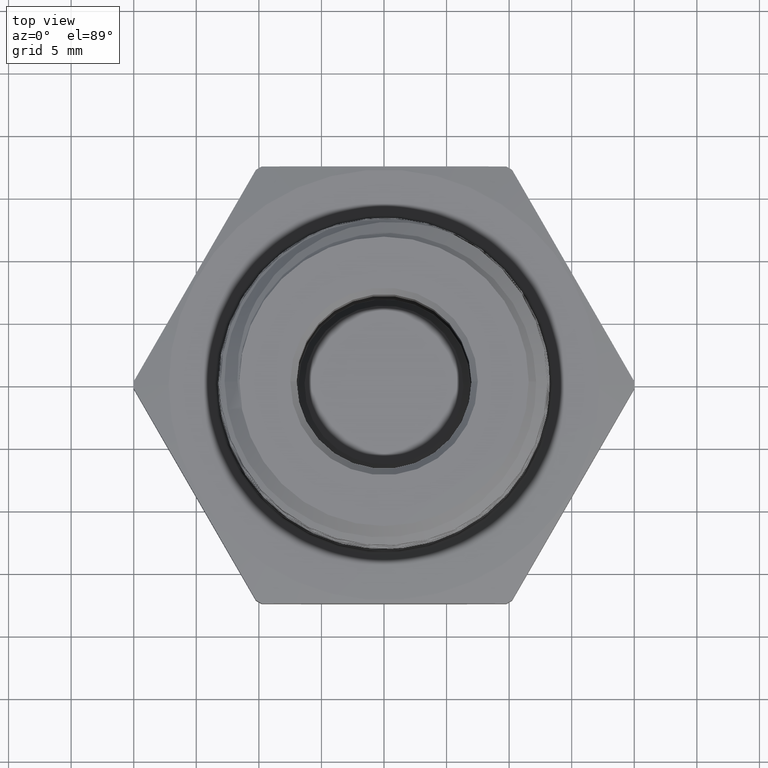
[diagram: clean part render]
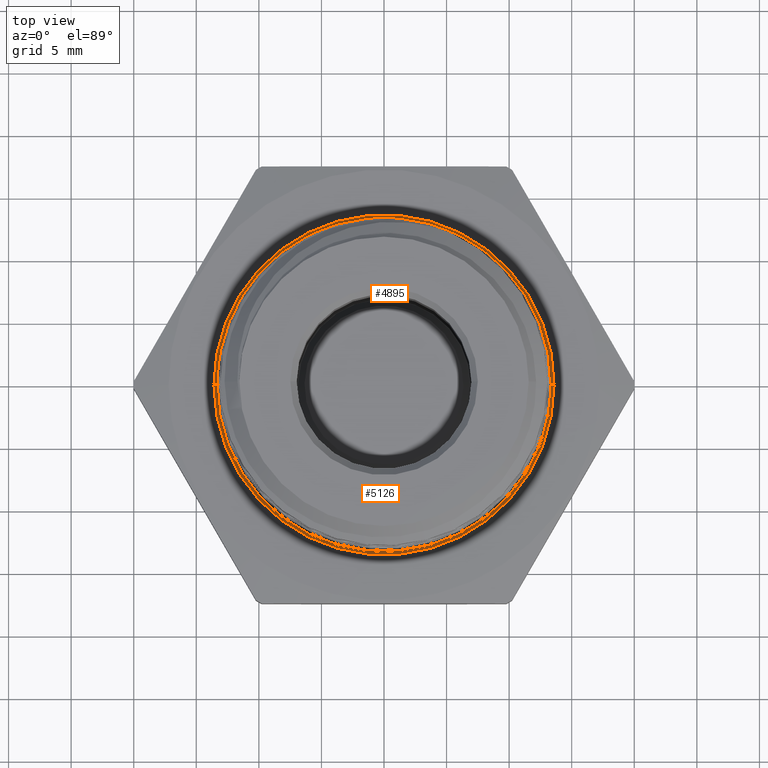
[diagram: same view with one multi-face feature highlighted, each face labeled with its STEP entity id]
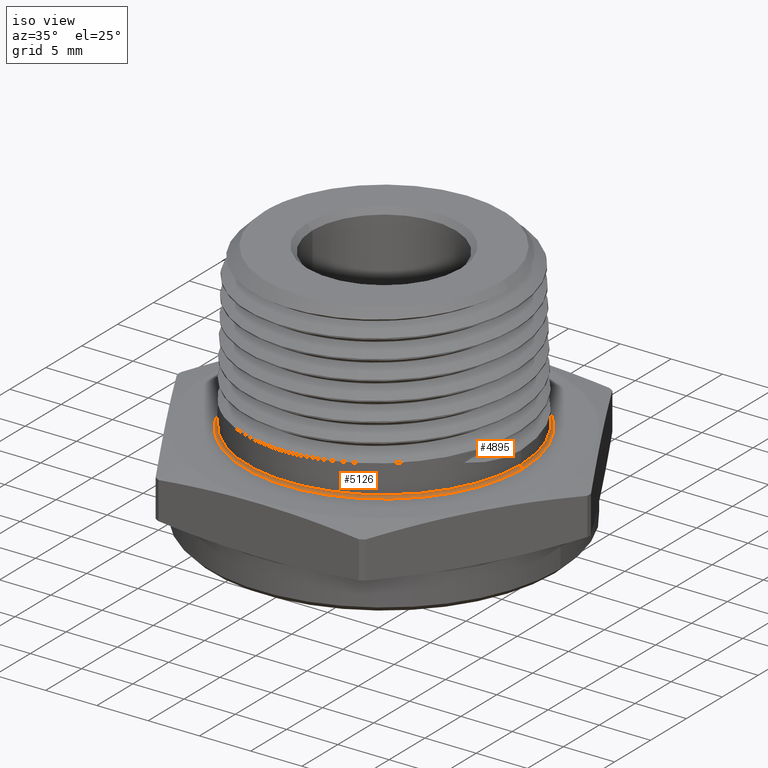
[diagram: same view with one multi-face feature highlighted, each face labeled with its STEP entity id]
A machine part, top view. The highlighted faces form ONE feature: a constant-radius fillet chain: 2 tangent blend faces with common blend radius 0.254 mm. The faces share edges in the B-rep.
A second angle (iso view) of the same feature is appended — it is thin or edge-on in the first view.
Their STEP definitions:
[1] entity #5126 (Torus):
#698 = CIRCLE ( 'NONE', #5213, 0.01000000000000003000 ) ;
#702 = CIRCLE ( 'NONE', #5214, 0.5350000000000000300 ) ;
#706 = CIRCLE ( 'NONE', #5215, 0.009999999999999995000 ) ;
#1157 = CARTESIAN_POINT ( 'NONE',  ( -0.5250000000000000200, 0.0000000000000000000, 0.2000000000000000400 ) ) ;
#1160 = CARTESIAN_POINT ( 'NONE',  ( 0.5250000000000000200, 6.429395695523603700E-017, 0.2000000000000000400 ) ) ;
#1162 = CARTESIAN_POINT ( 'NONE',  ( 0.5350000000000000300, 0.0000000000000000000, 0.1900000000000000300 ) ) ;
#1163 = CARTESIAN_POINT ( 'NONE',  ( -0.5350000000000000300, 6.551860375438339900E-017, 0.1900000000000000300 ) ) ;
#2877 = DIRECTION ( 'NONE',  ( -0.0000000000000000000, 0.0000000000000000000, 1.000000000000000000 ) ) ;
#2878 = CARTESIAN_POINT ( 'NONE',  ( 0.0000000000000000000, 0.0000000000000000000, 0.2000000000000000400 ) ) ;
#2880 = DIRECTION ( 'NONE',  ( 1.000000000000000000, 0.0000000000000000000, 0.0000000000000000000 ) ) ;
#3020 = AXIS2_PLACEMENT_3D ( 'NONE', #3304, #3305, #3306 ) ;
#3304 = CARTESIAN_POINT ( 'NONE',  ( 0.0000000000000000000, 0.0000000000000000000, 0.2000000000000000400 ) ) ;
#3305 = DIRECTION ( 'NONE',  ( -0.0000000000000000000, 0.0000000000000000000, 1.000000000000000000 ) ) ;
#3306 = DIRECTION ( 'NONE',  ( 1.000000000000000000, 0.0000000000000000000, 0.0000000000000000000 ) ) ;
#4272 = EDGE_CURVE ( 'NONE', #4793, #4799, #698, .T. ) ;
#4273 = EDGE_CURVE ( 'NONE', #4798, #4799, #702, .T. ) ;
#4274 = EDGE_CURVE ( 'NONE', #4796, #4798, #706, .T. ) ;
#4507 = CARTESIAN_POINT ( 'NONE',  ( -0.5350000000000000300, 6.551860375438339900E-017, 0.2000000000000000400 ) ) ;
#4508 = DIRECTION ( 'NONE',  ( 1.224646799147353200E-016, 1.000000000000000000, 0.0000000000000000000 ) ) ;
#4509 = DIRECTION ( 'NONE',  ( -1.000000000000000000, 1.224646799147346800E-016, 0.0000000000000000000 ) ) ;
#4510 = CARTESIAN_POINT ( 'NONE',  ( 0.0000000000000000000, 0.0000000000000000000, 0.1899999999999999700 ) ) ;
#4511 = DIRECTION ( 'NONE',  ( 0.0000000000000000000, -0.0000000000000000000, -1.000000000000000000 ) ) ;
#4512 = DIRECTION ( 'NONE',  ( 1.000000000000000000, 0.0000000000000000000, 0.0000000000000000000 ) ) ;
#4513 = CARTESIAN_POINT ( 'NONE',  ( 0.5350000000000000300, 0.0000000000000000000, 0.2000000000000000400 ) ) ;
#4514 = DIRECTION ( 'NONE',  ( 0.0000000000000000000, -1.000000000000000000, 0.0000000000000000000 ) ) ;
#4515 = DIRECTION ( 'NONE',  ( 0.0000000000000000000, 0.0000000000000000000, -1.000000000000000000 ) ) ;
#4636 = AXIS2_PLACEMENT_3D ( 'NONE', #2878, #2877, #2880 ) ;
#4645 = TOROIDAL_SURFACE ( 'NONE', #4636, 0.5350000000000000300, 0.01000000000000000000 ) ;
#4651 = FACE_OUTER_BOUND ( 'NONE', #4997, .T. ) ;
#4744 = CIRCLE ( 'NONE', #3020, 0.5250000000000000200 ) ;
#4793 = VERTEX_POINT ( 'NONE', #1157 ) ;
#4796 = VERTEX_POINT ( 'NONE', #1160 ) ;
#4798 = VERTEX_POINT ( 'NONE', #1162 ) ;
#4799 = VERTEX_POINT ( 'NONE', #1163 ) ;
#4997 = EDGE_LOOP ( 'NONE', ( #5041, #5042, #5043, #5044 ) ) ;
#5041 = ORIENTED_EDGE ( 'NONE', *, *, #5186, .F. ) ;
#5042 = ORIENTED_EDGE ( 'NONE', *, *, #4272, .T. ) ;
#5043 = ORIENTED_EDGE ( 'NONE', *, *, #4273, .F. ) ;
#5044 = ORIENTED_EDGE ( 'NONE', *, *, #4274, .F. ) ;
#5126 = ADVANCED_FACE ( 'NONE', ( #4651 ), #4645, .F. ) ;
#5186 = EDGE_CURVE ( 'NONE', #4793, #4796, #4744, .T. ) ;
#5213 = AXIS2_PLACEMENT_3D ( 'NONE', #4507, #4508, #4509 ) ;
#5214 = AXIS2_PLACEMENT_3D ( 'NONE', #4510, #4511, #4512 ) ;
#5215 = AXIS2_PLACEMENT_3D ( 'NONE', #4513, #4514, #4515 ) ;
[2] entity #4895 (Torus):
#212 = CARTESIAN_POINT ( 'NONE',  ( 0.0000000000000000000, 0.0000000000000000000, 0.1899999999999999700 ) ) ;
#213 = DIRECTION ( 'NONE',  ( 0.0000000000000000000, -0.0000000000000000000, -1.000000000000000000 ) ) ;
#214 = DIRECTION ( 'NONE',  ( 1.000000000000000000, 0.0000000000000000000, 0.0000000000000000000 ) ) ;
#698 = CIRCLE ( 'NONE', #5213, 0.01000000000000003000 ) ;
#706 = CIRCLE ( 'NONE', #5215, 0.009999999999999995000 ) ;
#737 = CIRCLE ( 'NONE', #4591, 0.5350000000000000300 ) ;
#800 = TOROIDAL_SURFACE ( 'NONE', #4611, 0.5350000000000000300, 0.01000000000000000000 ) ;
#801 = FACE_OUTER_BOUND ( 'NONE', #5065, .T. ) ;
#957 = CIRCLE ( 'NONE', #5201, 0.5250000000000000200 ) ;
#1157 = CARTESIAN_POINT ( 'NONE',  ( -0.5250000000000000200, 0.0000000000000000000, 0.2000000000000000400 ) ) ;
#1160 = CARTESIAN_POINT ( 'NONE',  ( 0.5250000000000000200, 6.429395695523603700E-017, 0.2000000000000000400 ) ) ;
#1162 = CARTESIAN_POINT ( 'NONE',  ( 0.5350000000000000300, 0.0000000000000000000, 0.1900000000000000300 ) ) ;
#1163 = CARTESIAN_POINT ( 'NONE',  ( -0.5350000000000000300, 6.551860375438339900E-017, 0.1900000000000000300 ) ) ;
#1247 = DIRECTION ( 'NONE',  ( -0.0000000000000000000, 0.0000000000000000000, 1.000000000000000000 ) ) ;
#1248 = CARTESIAN_POINT ( 'NONE',  ( 0.0000000000000000000, 0.0000000000000000000, 0.2000000000000000400 ) ) ;
#1250 = DIRECTION ( 'NONE',  ( 1.000000000000000000, 0.0000000000000000000, 0.0000000000000000000 ) ) ;
#3407 = EDGE_CURVE ( 'NONE', #4796, #4793, #957, .T. ) ;
#3485 = CARTESIAN_POINT ( 'NONE',  ( 0.0000000000000000000, 0.0000000000000000000, 0.2000000000000000400 ) ) ;
#3486 = DIRECTION ( 'NONE',  ( -0.0000000000000000000, 0.0000000000000000000, 1.000000000000000000 ) ) ;
#3487 = DIRECTION ( 'NONE',  ( 1.000000000000000000, 0.0000000000000000000, 0.0000000000000000000 ) ) ;
#4272 = EDGE_CURVE ( 'NONE', #4793, #4799, #698, .T. ) ;
#4274 = EDGE_CURVE ( 'NONE', #4796, #4798, #706, .T. ) ;
#4311 = EDGE_CURVE ( 'NONE', #4799, #4798, #737, .T. ) ;
#4507 = CARTESIAN_POINT ( 'NONE',  ( -0.5350000000000000300, 6.551860375438339900E-017, 0.2000000000000000400 ) ) ;
#4508 = DIRECTION ( 'NONE',  ( 1.224646799147353200E-016, 1.000000000000000000, 0.0000000000000000000 ) ) ;
#4509 = DIRECTION ( 'NONE',  ( -1.000000000000000000, 1.224646799147346800E-016, 0.0000000000000000000 ) ) ;
#4513 = CARTESIAN_POINT ( 'NONE',  ( 0.5350000000000000300, 0.0000000000000000000, 0.2000000000000000400 ) ) ;
#4514 = DIRECTION ( 'NONE',  ( 0.0000000000000000000, -1.000000000000000000, 0.0000000000000000000 ) ) ;
#4515 = DIRECTION ( 'NONE',  ( 0.0000000000000000000, 0.0000000000000000000, -1.000000000000000000 ) ) ;
#4591 = AXIS2_PLACEMENT_3D ( 'NONE', #212, #213, #214 ) ;
#4611 = AXIS2_PLACEMENT_3D ( 'NONE', #1248, #1247, #1250 ) ;
#4793 = VERTEX_POINT ( 'NONE', #1157 ) ;
#4796 = VERTEX_POINT ( 'NONE', #1160 ) ;
#4798 = VERTEX_POINT ( 'NONE', #1162 ) ;
#4799 = VERTEX_POINT ( 'NONE', #1163 ) ;
#4895 = ADVANCED_FACE ( 'NONE', ( #801 ), #800, .F. ) ;
#5065 = EDGE_LOOP ( 'NONE', ( #5094, #5095, #5096, #5097 ) ) ;
#5094 = ORIENTED_EDGE ( 'NONE', *, *, #4272, .F. ) ;
#5095 = ORIENTED_EDGE ( 'NONE', *, *, #3407, .F. ) ;
#5096 = ORIENTED_EDGE ( 'NONE', *, *, #4274, .T. ) ;
#5097 = ORIENTED_EDGE ( 'NONE', *, *, #4311, .F. ) ;
#5201 = AXIS2_PLACEMENT_3D ( 'NONE', #3485, #3486, #3487 ) ;
#5213 = AXIS2_PLACEMENT_3D ( 'NONE', #4507, #4508, #4509 ) ;
#5215 = AXIS2_PLACEMENT_3D ( 'NONE', #4513, #4514, #4515 ) ;